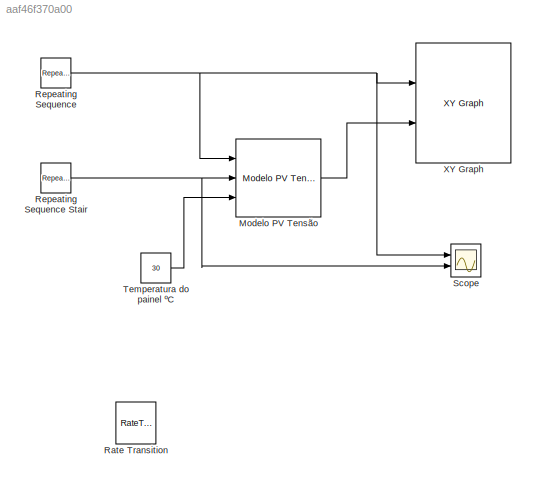
MODEL slx_aaf46f370a00
KIND model
CONFIG AbsTol = auto
CONFIG FixedStep = auto
CONFIG MaxStep = 0.01
CONFIG MinStep = 1e-8
CONFIG RelTol = 1e-3
CONFIG SampleTimeConstraint = Unconstrained
CONFIG Solver = ode45
CONFIG SolverMode = SingleTasking
CONFIG SolverName = ode45
CONFIG StartTime = 0.0
CONFIG StopTime = 100
BLOCK [Reference] Modelo PV Tensão  REF=AvgModels/Modelo PV
Tensão
  Animar = on
  EG = 1.1
  Isc = 8.21
  Mp = 1
  Ms = 1
  Ns = 54
  Ports = [3, 1]
  Psun = 1000
  Rp = 7
  Rs = 0.005
  SourceBlock = AvgModels/Modelo PV\nTensão
  SourceType = Modelo PV de tensão
  Tr = 273 + 25
  Voc = 0.6093
  a = 3.18e-3
  k = 1.38e-23
  n = 1.2
  q = 1.60e-19
  tau = 1e-2
BLOCK [RateTransition] Rate Transition
  Commented = on
  OutPortSampleTime = 0.001
BLOCK [Reference] Repeating Sequence  REF=simulink/Sources/Repeating
Sequence
  Ports = [0, 1]
  SourceBlock = simulink/Sources/Repeating\nSequence
  SourceType = Repeating table
  rep_seq_t = [0 5 10]
  rep_seq_y = [0 10 0]
BLOCK [Reference] Repeating Sequence Stair  REF=simulink/Sources/Repeating
Sequence
Stair
  ConRadixGroup = Best Precision: Vector-wise
  LockScale = off
  OutDataType = fixdt(0,8)
  OutDataTypeStr = double
  OutMax = []
  OutMin = []
  OutScaling = 2^-12
  OutValues = [100 200 300 400 500 600 700 800 900 1000].'
  OutputDataTypeScalingMode = double
  Ports = [0, 1]
  SourceBlock = simulink/Sources/Repeating\nSequence\nStair
  SourceType = Repeating Sequence Stair
  tsamp = 10
BLOCK [Scope] Scope
  DataFormat = StructureWithTime
  Floating = off
  LimitDataPoints = off
  NumInputPorts = 2
  Ports = [2]
  YMax = 11.25~1125.00000
  YMin = -1.25~-125.00000
BLOCK [Constant] Temperatura do painel ºC
  Value = 30
BLOCK [Reference] XY Graph  REF=simulink/Sinks/XY Graph
  Ports = [2]
  SourceBlock = simulink/Sinks/XY Graph
  SourceType = XY scope.
  st = -1
  xmax = 10
  xmin = 0
  ymax = 40
  ymin = 0
LINE Modelo PV Tensão:1 -> XY Graph:2
NET Repeating Sequence Stair:1 -> Modelo PV Tensão:2, Scope:2
NET Repeating Sequence:1 -> Modelo PV Tensão:1, Scope:1, XY Graph:1
LINE Temperatura do painel ºC:1 -> Modelo PV Tensão:3
note: NET lines group one-source signal fan-out (src -> all destinations, sorted); 1:1 wires keep LINE
